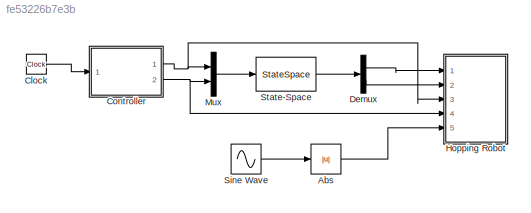
MODEL slx_fe53226b7e3b
KIND model
BLOCK [Abs] Abs
  SaturateOnIntegerOverflow = off
BLOCK [Clock] Clock
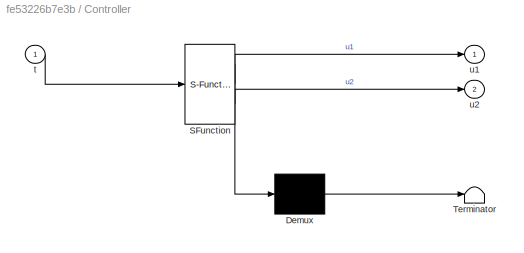
BLOCK [SubSystem] Controller
  ErrorFcn = Stateflow.Translate.translate
  FunctionWithSeparateData = off
  MaskHideContents = off
  MinAlgLoopOccurrences = off
  Opaque = off
  PermitHierarchicalResolution = ParametersOnly
  Ports = [1, 2]
  PropExecContextOutsideSubsystem = off
  RTWSystemCode = Auto
  RequestExecContextInheritance = off
  SFBlockType = MATLAB Function
  TreatAsAtomicUnit = on
  Variant = off
BLOCK [Demux] Controller/ Demux 
  Outputs = 1
  Ports = [1, 1]
BLOCK [S-Function] Controller/ SFunction 
  EnableBusSupport = on
  FunctionName = sf_sfun
  PortCounts = [1 3]
  Ports = [1, 3]
  SFunctionDeploymentMode = off
  Tag = Stateflow S-Function hopping_robot_plane_R2012b 2
BLOCK [Terminator] Controller/ Terminator 
BLOCK [Inport] Controller/t
  IconDisplay = Port number
BLOCK [Outport] Controller/u1
  IconDisplay = Port number
BLOCK [Outport] Controller/u2
  IconDisplay = Port number
  Port = 2
BLOCK [Demux] Demux
  DisplayOption = bar
  Outputs = 2
  Ports = [1, 2]
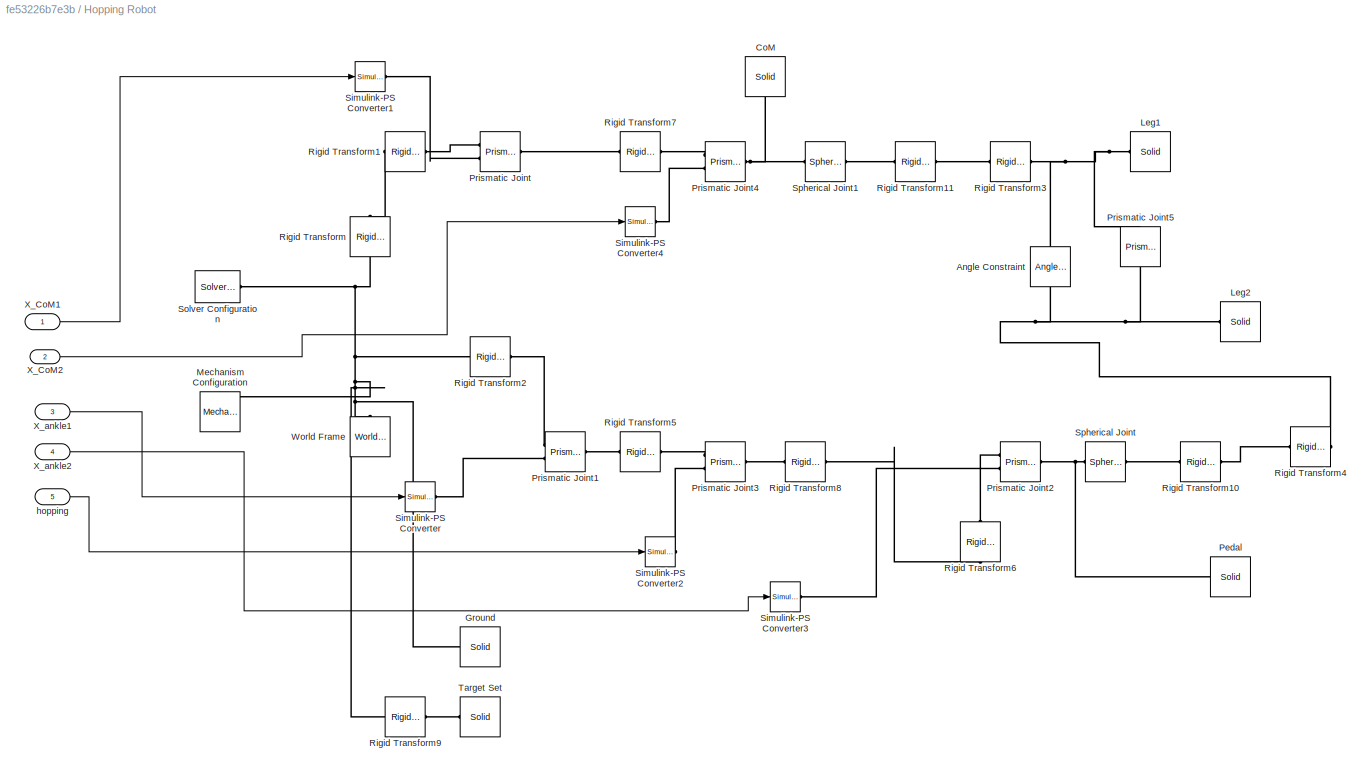
BLOCK [SubSystem] Hopping Robot
  FunctionWithSeparateData = off
  MaskHideContents = off
  MinAlgLoopOccurrences = off
  Opaque = off
  Ports = [5]
  PropExecContextOutsideSubsystem = off
  RTWSystemCode = Auto
  RequestExecContextInheritance = off
  Variant = off
BLOCK [Reference] Hopping Robot/Angle Constraint  REF=sm_lib/Constraints/Angle 
Constraint
  Angle = 45
  AngleUnits = deg
  Angle_conf = compiletime
  ConstraintType = Parallel
  LogSimulationData = off
  Ports = [0, 0, 0, 0, 0, 1, 1]
  SenseForce = off
  SenseSignedTorqueMagnitude = off
  SenseTorque = off
  SourceBlock = sm_lib/Constraints/Angle \nConstraint
  SourceType = Angle\nConstraint
  WrenchDir = FollowerOnBase
  WrenchFrame = BaseFrame
BLOCK [Reference] Hopping Robot/CoM  REF=sm_lib/Body Elements/Solid
  BrickDimensionUnits = m
  BrickDimensions = [1 1 1]
  BrickDimensions_conf = compiletime
  CenterOfMass = [0 0 0]
  CenterOfMassUnits = m
  CenterOfMass_conf = compiletime
  CylinderLength = 0.1
  CylinderLengthUnits = m
  CylinderLength_conf = compiletime
  CylinderRadius = 0.1
  CylinderRadiusUnits = m
  CylinderRadius_conf = compiletime
  Density = 1000
  DensityBased = on
  DensityUnits = kg/m^3
  Density_conf = compiletime
  DoExposeReferenceFrame = on
  EllipsoidRadii = [1 1 1]
  EllipsoidRadiiUnits = m
  EllipsoidRadii_conf = compiletime
  ExtGeomFileType = STEP
  ExtGeomFileUnits = m
  ExtrusionCrossSection = [1 1; -1 1; -1 -1; 1 -1]
  ExtrusionCrossSectionUnits = m
  ExtrusionLength = 1
  ExtrusionLengthUnits = m
  GeometryShape = Sphere
  GraphicAmbientColor = [0.15 0.15 0.15 1.0]
  GraphicAmbientColor_conf = compiletime
  GraphicDiffuseColor = [0.0 0.4 0.8]
  GraphicDiffuseColor_conf = compiletime
  GraphicEmissiveColor = [0.0 0.0 0.0 1.0]
  GraphicEmissiveColor_conf = compiletime
  GraphicOpacity = 1.0
  GraphicOpacity_conf = compiletime
  GraphicShininess = 75
  GraphicShininess_conf = compiletime
  GraphicSpecularColor = [0.5 0.5 0.5 1.0]
  GraphicSpecularColor_conf = compiletime
  GraphicType = FromGeometry
  GraphicVisPropType = SimpleVisualProperties
  InertiaType = CalculateFromGeometry
  LogSimulationData = off
  MarkerShape = Sphere
  MarkerSize = 10
  MarkerSize_conf = compiletime
  Mass = 1
  MassUnits = kg
  Mass_conf = compiletime
  MomentsOfInertia = [1 1 1]
  MomentsOfInertiaUnits = kg*m^2
  MomentsOfInertia_conf = compiletime
  PolygonNumSides = 3
  PolygonOuterRadius = 1
  PolygonOuterRadiusUnits = m
  PolygonOuterRadius_conf = compiletime
  Ports = [0, 0, 0, 0, 0, 0, 1]
  ProductsOfInertia = [1 1 1]
  ProductsOfInertiaUnits = kg*m^2
  ProductsOfInertia_conf = compiletime
  RectangleSize = [1 1]
  RectangleSizeUnits = m
  RectangleSize_conf = compiletime
  RevolutionAngle = 180
  RevolutionAngleUnits = deg
  RevolutionCrossSection = [1 1; 1 -1; 2 -1; 2 1]
  RevolutionCrossSectionUnits = m
  RevolutionExtent = Full
  SerializedFrames = <Frames/>
  SourceBlock = sm_lib/Body Elements/Solid
  SourceType = Solid
  SphereRadius = 0.1
  SphereRadiusUnits = m
  SphereRadius_conf = compiletime
BLOCK [Reference] Hopping Robot/Ground  REF=sm_lib/Body Elements/Solid
  BrickDimensionUnits = m
  BrickDimensions = [range(U.bnd(1,:)) range(U.bnd(2,:)) 0.001]
  BrickDimensions_conf = compiletime
  CenterOfMass = [0 0 0]
  CenterOfMassUnits = m
  CenterOfMass_conf = compiletime
  CylinderLength = 0.1
  CylinderLengthUnits = m
  CylinderLength_conf = compiletime
  CylinderRadius = 0.1
  CylinderRadiusUnits = m
  CylinderRadius_conf = compiletime
  Density = 1000
  DensityBased = on
  DensityUnits = kg/m^3
  Density_conf = compiletime
  DoExposeReferenceFrame = on
  EllipsoidRadii = [1 1 1]
  EllipsoidRadiiUnits = m
  EllipsoidRadii_conf = compiletime
  ExtGeomFileType = STEP
  ExtGeomFileUnits = m
  ExtrusionCrossSection = [1 1; -1 1; -1 -1; 1 -1]
  ExtrusionCrossSectionUnits = m
  ExtrusionLength = 1
  ExtrusionLengthUnits = m
  GeometryShape = Brick
  GraphicAmbientColor = [0.15 0.15 0.15 1.0]
  GraphicAmbientColor_conf = compiletime
  GraphicDiffuseColor = [0.0 0.0 1.0]
  GraphicDiffuseColor_conf = compiletime
  GraphicEmissiveColor = [0.0 0.0 0.0 1.0]
  GraphicEmissiveColor_conf = compiletime
  GraphicOpacity = 0.1
  GraphicOpacity_conf = compiletime
  GraphicShininess = 75
  GraphicShininess_conf = compiletime
  GraphicSpecularColor = [0.5 0.5 0.5 1.0]
  GraphicSpecularColor_conf = compiletime
  GraphicType = FromGeometry
  GraphicVisPropType = SimpleVisualProperties
  InertiaType = CalculateFromGeometry
  LogSimulationData = off
  MarkerShape = Sphere
  MarkerSize = 10
  MarkerSize_conf = compiletime
  Mass = 1
  MassUnits = kg
  Mass_conf = compiletime
  MomentsOfInertia = [1 1 1]
  MomentsOfInertiaUnits = kg*m^2
  MomentsOfInertia_conf = compiletime
  PolygonNumSides = 3
  PolygonOuterRadius = 1
  PolygonOuterRadiusUnits = m
  PolygonOuterRadius_conf = compiletime
  Ports = [0, 0, 0, 0, 0, 0, 1]
  ProductsOfInertia = [1 1 1]
  ProductsOfInertiaUnits = kg*m^2
  ProductsOfInertia_conf = compiletime
  RectangleSize = [1 1]
  RectangleSizeUnits = m
  RectangleSize_conf = compiletime
  RevolutionAngle = 180
  RevolutionAngleUnits = deg
  RevolutionCrossSection = [1 1; 1 -1; 2 -1; 2 1]
  RevolutionCrossSectionUnits = m
  RevolutionExtent = Full
  SerializedFrames = <Frames/>
  SourceBlock = sm_lib/Body Elements/Solid
  SourceType = Solid
  SphereRadius = 0.1
  SphereRadiusUnits = m
  SphereRadius_conf = compiletime
BLOCK [Reference] Hopping Robot/Leg1  REF=sm_lib/Body Elements/Solid
  BrickDimensionUnits = m
  BrickDimensions = [0.05 0.2 0.2]
  BrickDimensions_conf = compiletime
  CenterOfMass = [0 0 0]
  CenterOfMassUnits = m
  CenterOfMass_conf = compiletime
  CylinderLength = len_leg1
  CylinderLengthUnits = m
  CylinderLength_conf = compiletime
  CylinderRadius = 0.05
  CylinderRadiusUnits = m
  CylinderRadius_conf = compiletime
  Density = 1000
  DensityBased = on
  DensityUnits = kg/m^3
  Density_conf = compiletime
  DoExposeReferenceFrame = on
  EllipsoidRadii = [1 1 1]
  EllipsoidRadiiUnits = m
  EllipsoidRadii_conf = compiletime
  ExtGeomFileType = STEP
  ExtGeomFileUnits = m
  ExtrusionCrossSection = [1 1; -1 1; -1 -1; 1 -1]
  ExtrusionCrossSectionUnits = m
  ExtrusionLength = 1
  ExtrusionLengthUnits = m
  GeometryShape = Cylinder
  GraphicAmbientColor = [0.15 0.15 0.15 1.0]
  GraphicAmbientColor_conf = compiletime
  GraphicDiffuseColor = [0.2 0.6 1.0]
  GraphicDiffuseColor_conf = compiletime
  GraphicEmissiveColor = [0.0 0.0 0.0 1.0]
  GraphicEmissiveColor_conf = compiletime
  GraphicOpacity = 1.0
  GraphicOpacity_conf = compiletime
  GraphicShininess = 75
  GraphicShininess_conf = compiletime
  GraphicSpecularColor = [0.5 0.5 0.5 1.0]
  GraphicSpecularColor_conf = compiletime
  GraphicType = FromGeometry
  GraphicVisPropType = SimpleVisualProperties
  InertiaType = CalculateFromGeometry
  LogSimulationData = off
  MarkerShape = Sphere
  MarkerSize = 10
  MarkerSize_conf = compiletime
  Mass = 1
  MassUnits = kg
  Mass_conf = compiletime
  MomentsOfInertia = [1 1 1]
  MomentsOfInertiaUnits = kg*m^2
  MomentsOfInertia_conf = compiletime
  PolygonNumSides = 3
  PolygonOuterRadius = 1
  PolygonOuterRadiusUnits = m
  PolygonOuterRadius_conf = compiletime
  Ports = [0, 0, 0, 0, 0, 0, 1]
  ProductsOfInertia = [1 1 1]
  ProductsOfInertiaUnits = kg*m^2
  ProductsOfInertia_conf = compiletime
  RectangleSize = [1 1]
  RectangleSizeUnits = m
  RectangleSize_conf = compiletime
  RevolutionAngle = 180
  RevolutionAngleUnits = deg
  RevolutionCrossSection = [1 1; 1 -1; 2 -1; 2 1]
  RevolutionCrossSectionUnits = m
  RevolutionExtent = Full
  SerializedFrames = <Frames/>
  SourceBlock = sm_lib/Body Elements/Solid
  SourceType = Solid
  SphereRadius = 1
  SphereRadiusUnits = m
  SphereRadius_conf = compiletime
BLOCK [Reference] Hopping Robot/Leg2  REF=sm_lib/Body Elements/Solid
  BrickDimensionUnits = m
  BrickDimensions = [0.05 0.2 0.2]
  BrickDimensions_conf = compiletime
  CenterOfMass = [0 0 0]
  CenterOfMassUnits = m
  CenterOfMass_conf = compiletime
  CylinderLength = len_leg2
  CylinderLengthUnits = m
  CylinderLength_conf = compiletime
  CylinderRadius = 0.02
  CylinderRadiusUnits = m
  CylinderRadius_conf = compiletime
  Density = 1000
  DensityBased = on
  DensityUnits = kg/m^3
  Density_conf = compiletime
  DoExposeReferenceFrame = on
  EllipsoidRadii = [1 1 1]
  EllipsoidRadiiUnits = m
  EllipsoidRadii_conf = compiletime
  ExtGeomFileType = STEP
  ExtGeomFileUnits = m
  ExtrusionCrossSection = [1 1; -1 1; -1 -1; 1 -1]
  ExtrusionCrossSectionUnits = m
  ExtrusionLength = 1
  ExtrusionLengthUnits = m
  GeometryShape = Cylinder
  GraphicAmbientColor = [0.15 0.15 0.15 1.0]
  GraphicAmbientColor_conf = compiletime
  GraphicDiffuseColor = [0.6 0.8 1.0]
  GraphicDiffuseColor_conf = compiletime
  GraphicEmissiveColor = [0.0 0.0 0.0 1.0]
  GraphicEmissiveColor_conf = compiletime
  GraphicOpacity = 1.0
  GraphicOpacity_conf = compiletime
  GraphicShininess = 75
  GraphicShininess_conf = compiletime
  GraphicSpecularColor = [0.5 0.5 0.5 1.0]
  GraphicSpecularColor_conf = compiletime
  GraphicType = FromGeometry
  GraphicVisPropType = SimpleVisualProperties
  InertiaType = CalculateFromGeometry
  LogSimulationData = off
  MarkerShape = Sphere
  MarkerSize = 10
  MarkerSize_conf = compiletime
  Mass = 1
  MassUnits = kg
  Mass_conf = compiletime
  MomentsOfInertia = [1 1 1]
  MomentsOfInertiaUnits = kg*m^2
  MomentsOfInertia_conf = compiletime
  PolygonNumSides = 3
  PolygonOuterRadius = 1
  PolygonOuterRadiusUnits = m
  PolygonOuterRadius_conf = compiletime
  Ports = [0, 0, 0, 0, 0, 0, 1]
  ProductsOfInertia = [1 1 1]
  ProductsOfInertiaUnits = kg*m^2
  ProductsOfInertia_conf = compiletime
  RectangleSize = [1 1]
  RectangleSizeUnits = m
  RectangleSize_conf = compiletime
  RevolutionAngle = 180
  RevolutionAngleUnits = deg
  RevolutionCrossSection = [1 1; 1 -1; 2 -1; 2 1]
  RevolutionCrossSectionUnits = m
  RevolutionExtent = Full
  SerializedFrames = <Frames/>
  SourceBlock = sm_lib/Body Elements/Solid
  SourceType = Solid
  SphereRadius = 1
  SphereRadiusUnits = m
  SphereRadius_conf = compiletime
BLOCK [Reference] Hopping Robot/Mechanism Configuration  REF=sm_lib/Utilities/Mechanism 
Configuration
  GravityUnits = m/s^2
  GravityVector = [0 0 -9.80665]
  GravityVector_conf = compiletime
  LinearizationDelta = 0.001
  LogSimulationData = off
  Ports = [0, 0, 0, 0, 0, 0, 1]
  SourceBlock = sm_lib/Utilities/Mechanism \nConfiguration
  SourceType = Mechanism\nConfiguration
BLOCK [Reference] Hopping Robot/Pedal  REF=sm_lib/Body Elements/Solid
  BrickDimensionUnits = m
  BrickDimensions = [0.05 0.2 0.2]
  BrickDimensions_conf = compiletime
  CenterOfMass = [0 0 0]
  CenterOfMassUnits = m
  CenterOfMass_conf = compiletime
  CylinderLength = 1
  CylinderLengthUnits = m
  CylinderLength_conf = compiletime
  CylinderRadius = 1
  CylinderRadiusUnits = m
  CylinderRadius_conf = compiletime
  Density = 1000
  DensityBased = on
  DensityUnits = kg/m^3
  Density_conf = compiletime
  DoExposeReferenceFrame = on
  EllipsoidRadii = [1 1 1]
  EllipsoidRadiiUnits = m
  EllipsoidRadii_conf = compiletime
  ExtGeomFileType = STEP
  ExtGeomFileUnits = m
  ExtrusionCrossSection = [1 1; -1 1; -1 -1; 1 -1]
  ExtrusionCrossSectionUnits = m
  ExtrusionLength = 1
  ExtrusionLengthUnits = m
  GeometryShape = Brick
  GraphicAmbientColor = [0.15 0.15 0.15 1.0]
  GraphicAmbientColor_conf = compiletime
  GraphicDiffuseColor = [0.8 0.0 0.6]
  GraphicDiffuseColor_conf = compiletime
  GraphicEmissiveColor = [0.0 0.0 0.0 1.0]
  GraphicEmissiveColor_conf = compiletime
  GraphicOpacity = 1.0
  GraphicOpacity_conf = compiletime
  GraphicShininess = 75
  GraphicShininess_conf = compiletime
  GraphicSpecularColor = [0.5 0.5 0.5 1.0]
  GraphicSpecularColor_conf = compiletime
  GraphicType = FromGeometry
  GraphicVisPropType = SimpleVisualProperties
  InertiaType = CalculateFromGeometry
  LogSimulationData = off
  MarkerShape = Sphere
  MarkerSize = 10
  MarkerSize_conf = compiletime
  Mass = 1
  MassUnits = kg
  Mass_conf = compiletime
  MomentsOfInertia = [1 1 1]
  MomentsOfInertiaUnits = kg*m^2
  MomentsOfInertia_conf = compiletime
  PolygonNumSides = 3
  PolygonOuterRadius = 1
  PolygonOuterRadiusUnits = m
  PolygonOuterRadius_conf = compiletime
  Ports = [0, 0, 0, 0, 0, 0, 1]
  ProductsOfInertia = [1 1 1]
  ProductsOfInertiaUnits = kg*m^2
  ProductsOfInertia_conf = compiletime
  RectangleSize = [1 1]
  RectangleSizeUnits = m
  RectangleSize_conf = compiletime
  RevolutionAngle = 180
  RevolutionAngleUnits = deg
  RevolutionCrossSection = [1 1; 1 -1; 2 -1; 2 1]
  RevolutionCrossSectionUnits = m
  RevolutionExtent = Full
  SerializedFrames = <Frames/>
  SourceBlock = sm_lib/Body Elements/Solid
  SourceType = Solid
  SphereRadius = 1
  SphereRadiusUnits = m
  SphereRadius_conf = compiletime
BLOCK [Reference] Hopping Robot/Prismatic Joint  REF=sm_lib/Joints/Prismatic 
Joint
  CompositeWrenchDir = FollowerOnBase
  CompositeWrenchFrame = BaseFrame
  DampingCoefficient = 0
  DampingCoefficientUnits = N/(m/s)
  DampingCoefficient_conf = compiletime
  EquilibriumPosition = 0
  EquilibriumPositionUnits = m
  EquilibriumPosition_conf = compiletime
  LogSimulationData = off
  MotionActuationMode = InputMotion
  Ports = [0, 0, 0, 0, 0, 2, 1]
  PositionTargetPriority = Low
  PositionTargetSpecify = off
  PositionTargetValue = 0
  PositionTargetValueUnits = m
  PositionTargetValue_conf = compiletime
  SenseAcceleration = off
  SenseConstraintForce = off
  SenseConstraintForceX = off
  SenseConstraintForceY = off
  SenseConstraintForceZ = off
  SenseConstraintTorque = off
  SenseConstraintTorqueX = off
  SenseConstraintTorqueY = off
  SenseConstraintTorqueZ = off
  SensePosition = off
  SenseTorqueForce = off
  SenseTotalForce = off
  SenseTotalForceX = off
  SenseTotalForceY = off
  SenseTotalForceZ = off
  SenseTotalTorque = off
  SenseTotalTorqueX = off
  SenseTotalTorqueY = off
  SenseTotalTorqueZ = off
  SenseVelocity = off
  SourceBlock = sm_lib/Joints/Prismatic \nJoint
  SourceType = Prismatic\nJoint
  SpringStiffness = 0
  SpringStiffnessUnits = N/m
  SpringStiffness_conf = compiletime
  TorqueActuationMode = ComputedTorque
  VelocityTargetPriority = High
  VelocityTargetSpecify = off
  VelocityTargetValue = 0
  VelocityTargetValueUnits = m/s
  VelocityTargetValue_conf = compiletime
BLOCK [Reference] Hopping Robot/Prismatic Joint1  REF=sm_lib/Joints/Prismatic 
Joint
  CompositeWrenchDir = FollowerOnBase
  CompositeWrenchFrame = BaseFrame
  DampingCoefficient = 0
  DampingCoefficientUnits = N/(m/s)
  DampingCoefficient_conf = compiletime
  EquilibriumPosition = 0
  EquilibriumPositionUnits = m
  EquilibriumPosition_conf = compiletime
  LogSimulationData = off
  MotionActuationMode = InputMotion
  Ports = [0, 0, 0, 0, 0, 2, 1]
  PositionTargetPriority = Low
  PositionTargetSpecify = off
  PositionTargetValue = 0
  PositionTargetValueUnits = m
  PositionTargetValue_conf = compiletime
  SenseAcceleration = off
  SenseConstraintForce = off
  SenseConstraintForceX = off
  SenseConstraintForceY = off
  SenseConstraintForceZ = off
  SenseConstraintTorque = off
  SenseConstraintTorqueX = off
  SenseConstraintTorqueY = off
  SenseConstraintTorqueZ = off
  SensePosition = off
  SenseTorqueForce = off
  SenseTotalForce = off
  SenseTotalForceX = off
  SenseTotalForceY = off
  SenseTotalForceZ = off
  SenseTotalTorque = off
  SenseTotalTorqueX = off
  SenseTotalTorqueY = off
  SenseTotalTorqueZ = off
  SenseVelocity = off
  SourceBlock = sm_lib/Joints/Prismatic \nJoint
  SourceType = Prismatic\nJoint
  SpringStiffness = 0
  SpringStiffnessUnits = N/m
  SpringStiffness_conf = compiletime
  TorqueActuationMode = ComputedTorque
  VelocityTargetPriority = High
  VelocityTargetSpecify = off
  VelocityTargetValue = 0
  VelocityTargetValueUnits = m/s
  VelocityTargetValue_conf = compiletime
BLOCK [Reference] Hopping Robot/Prismatic Joint2  REF=sm_lib/Joints/Prismatic 
Joint
  CompositeWrenchDir = FollowerOnBase
  CompositeWrenchFrame = BaseFrame
  DampingCoefficient = 0
  DampingCoefficientUnits = N/(m/s)
  DampingCoefficient_conf = compiletime
  EquilibriumPosition = 0
  EquilibriumPositionUnits = m
  EquilibriumPosition_conf = compiletime
  LogSimulationData = off
  MotionActuationMode = InputMotion
  Ports = [0, 0, 0, 0, 0, 2, 1]
  PositionTargetPriority = High
  PositionTargetSpecify = off
  PositionTargetValue = 0
  PositionTargetValueUnits = m
  PositionTargetValue_conf = compiletime
  SenseAcceleration = off
  SenseConstraintForce = off
  SenseConstraintForceX = off
  SenseConstraintForceY = off
  SenseConstraintForceZ = off
  SenseConstraintTorque = off
  SenseConstraintTorqueX = off
  SenseConstraintTorqueY = off
  SenseConstraintTorqueZ = off
  SensePosition = off
  SenseTorqueForce = off
  SenseTotalForce = off
  SenseTotalForceX = off
  SenseTotalForceY = off
  SenseTotalForceZ = off
  SenseTotalTorque = off
  SenseTotalTorqueX = off
  SenseTotalTorqueY = off
  SenseTotalTorqueZ = off
  SenseVelocity = off
  SourceBlock = sm_lib/Joints/Prismatic \nJoint
  SourceType = Prismatic\nJoint
  SpringStiffness = 0
  SpringStiffnessUnits = N/m
  SpringStiffness_conf = compiletime
  TorqueActuationMode = ComputedTorque
  VelocityTargetPriority = High
  VelocityTargetSpecify = off
  VelocityTargetValue = 0
  VelocityTargetValueUnits = m/s
  VelocityTargetValue_conf = compiletime
BLOCK [Reference] Hopping Robot/Prismatic Joint3  REF=sm_lib/Joints/Prismatic 
Joint
  CompositeWrenchDir = FollowerOnBase
  CompositeWrenchFrame = BaseFrame
  DampingCoefficient = 0
  DampingCoefficientUnits = N/(m/s)
  DampingCoefficient_conf = compiletime
  EquilibriumPosition = 0
  EquilibriumPositionUnits = m
  EquilibriumPosition_conf = compiletime
  LogSimulationData = off
  MotionActuationMode = InputMotion
  Ports = [0, 0, 0, 0, 0, 2, 1]
  PositionTargetPriority = Low
  PositionTargetSpecify = off
  PositionTargetValue = 0
  PositionTargetValueUnits = m
  PositionTargetValue_conf = compiletime
  SenseAcceleration = off
  SenseConstraintForce = off
  SenseConstraintForceX = off
  SenseConstraintForceY = off
  SenseConstraintForceZ = off
  SenseConstraintTorque = off
  SenseConstraintTorqueX = off
  SenseConstraintTorqueY = off
  SenseConstraintTorqueZ = off
  SensePosition = off
  SenseTorqueForce = off
  SenseTotalForce = off
  SenseTotalForceX = off
  SenseTotalForceY = off
  SenseTotalForceZ = off
  SenseTotalTorque = off
  SenseTotalTorqueX = off
  SenseTotalTorqueY = off
  SenseTotalTorqueZ = off
  SenseVelocity = off
  SourceBlock = sm_lib/Joints/Prismatic \nJoint
  SourceType = Prismatic\nJoint
  SpringStiffness = 0
  SpringStiffnessUnits = N/m
  SpringStiffness_conf = compiletime
  TorqueActuationMode = ComputedTorque
  VelocityTargetPriority = High
  VelocityTargetSpecify = off
  VelocityTargetValue = 0
  VelocityTargetValueUnits = m/s
  VelocityTargetValue_conf = compiletime
BLOCK [Reference] Hopping Robot/Prismatic Joint4  REF=sm_lib/Joints/Prismatic 
Joint
  CompositeWrenchDir = FollowerOnBase
  CompositeWrenchFrame = BaseFrame
  DampingCoefficient = 0
  DampingCoefficientUnits = N/(m/s)
  DampingCoefficient_conf = compiletime
  EquilibriumPosition = 0
  EquilibriumPositionUnits = m
  EquilibriumPosition_conf = compiletime
  LogSimulationData = off
  MotionActuationMode = InputMotion
  Ports = [0, 0, 0, 0, 0, 2, 1]
  PositionTargetPriority = High
  PositionTargetSpecify = off
  PositionTargetValue = 0
  PositionTargetValueUnits = m
  PositionTargetValue_conf = compiletime
  SenseAcceleration = off
  SenseConstraintForce = off
  SenseConstraintForceX = off
  SenseConstraintForceY = off
  SenseConstraintForceZ = off
  SenseConstraintTorque = off
  SenseConstraintTorqueX = off
  SenseConstraintTorqueY = off
  SenseConstraintTorqueZ = off
  SensePosition = off
  SenseTorqueForce = off
  SenseTotalForce = off
  SenseTotalForceX = off
  SenseTotalForceY = off
  SenseTotalForceZ = off
  SenseTotalTorque = off
  SenseTotalTorqueX = off
  SenseTotalTorqueY = off
  SenseTotalTorqueZ = off
  SenseVelocity = off
  SourceBlock = sm_lib/Joints/Prismatic \nJoint
  SourceType = Prismatic\nJoint
  SpringStiffness = 0
  SpringStiffnessUnits = N/m
  SpringStiffness_conf = compiletime
  TorqueActuationMode = ComputedTorque
  VelocityTargetPriority = High
  VelocityTargetSpecify = off
  VelocityTargetValue = 0
  VelocityTargetValueUnits = m/s
  VelocityTargetValue_conf = compiletime
BLOCK [Reference] Hopping Robot/Prismatic Joint5  REF=sm_lib/Joints/Prismatic 
Joint
  CompositeWrenchDir = FollowerOnBase
  CompositeWrenchFrame = BaseFrame
  DampingCoefficient = 0
  DampingCoefficientUnits = N/(m/s)
  DampingCoefficient_conf = compiletime
  EquilibriumPosition = 0
  EquilibriumPositionUnits = m
  EquilibriumPosition_conf = compiletime
  LogSimulationData = off
  MotionActuationMode = ComputedMotion
  Ports = [0, 0, 0, 0, 0, 1, 1]
  PositionTargetPriority = High
  PositionTargetSpecify = off
  PositionTargetValue = 0
  PositionTargetValueUnits = m
  PositionTargetValue_conf = compiletime
  SenseAcceleration = off
  SenseConstraintForce = off
  SenseConstraintForceX = off
  SenseConstraintForceY = off
  SenseConstraintForceZ = off
  SenseConstraintTorque = off
  SenseConstraintTorqueX = off
  SenseConstraintTorqueY = off
  SenseConstraintTorqueZ = off
  SensePosition = off
  SenseTorqueForce = off
  SenseTotalForce = off
  SenseTotalForceX = off
  SenseTotalForceY = off
  SenseTotalForceZ = off
  SenseTotalTorque = off
  SenseTotalTorqueX = off
  SenseTotalTorqueY = off
  SenseTotalTorqueZ = off
  SenseVelocity = off
  SourceBlock = sm_lib/Joints/Prismatic \nJoint
  SourceType = Prismatic\nJoint
  SpringStiffness = 0
  SpringStiffnessUnits = N/m
  SpringStiffness_conf = compiletime
  TorqueActuationMode = NoTorque
  VelocityTargetPriority = High
  VelocityTargetSpecify = off
  VelocityTargetValue = 0
  VelocityTargetValueUnits = m/s
  VelocityTargetValue_conf = compiletime
BLOCK [Reference] Hopping Robot/Rigid Transform  REF=sm_lib/Frames and
 Transforms/Rigid 
Transform
  BaseAlignAxisA = +Y
  BaseAlignAxisB = +Z
  FollAlignAxisA = +X
  FollAlignAxisB = +Y
  LogSimulationData = off
  Ports = [0, 0, 0, 0, 0, 1, 1]
  RotationAngle = 0.0
  RotationAngleUnits = deg
  RotationAngle_conf = compiletime
  RotationArbitraryAxis = [0 0 1]
  RotationArbitraryAxis_conf = compiletime
  RotationMatrix = [1 0 0; 0 1 0; 0 0 1]
  RotationMatrix_conf = compiletime
  RotationMethod = None
  RotationSequence = XYX
  RotationSequenceAngles = [0 0 0]
  RotationSequenceAnglesUnits = deg
  RotationSequenceAngles_conf = compiletime
  RotationSequenceAxes = FollowerAxes
  RotationStandardAxis = +Z
  SourceBlock = sm_lib/Frames and\n Transforms/Rigid \nTransform
  SourceType = Rigid\nTransform
  TranslationCartesianOffset = [0 0 0]
  TranslationCartesianOffset_conf = compiletime
  TranslationLengthUnit = m
  TranslationMethod = StandardAxis
  TranslationROffset = 0
  TranslationROffsetUnits = m
  TranslationROffset_conf = compiletime
  TranslationStandardAxis = +Z
  TranslationStandardOffset = h0
  TranslationStandardOffset_conf = compiletime
  TranslationThetaOffset = 0
  TranslationThetaOffsetUnits = deg
  TranslationThetaOffset_conf = compiletime
  TranslationZOffset = 0
  TranslationZOffsetUnits = m
  TranslationZOffset_conf = compiletime
BLOCK [Reference] Hopping Robot/Rigid Transform1  REF=sm_lib/Frames and
 Transforms/Rigid 
Transform
  BaseAlignAxisA = +Y
  BaseAlignAxisB = +Z
  FollAlignAxisA = +X
  FollAlignAxisB = +Y
  LogSimulationData = off
  Ports = [0, 0, 0, 0, 0, 1, 1]
  RotationAngle = 90
  RotationAngleUnits = deg
  RotationAngle_conf = compiletime
  RotationArbitraryAxis = [0 0 1]
  RotationArbitraryAxis_conf = compiletime
  RotationMatrix = [1 0 0; 0 1 0; 0 0 1]
  RotationMatrix_conf = compiletime
  RotationMethod = StandardAxis
  RotationSequence = XYX
  RotationSequenceAngles = [0 0 0]
  RotationSequenceAnglesUnits = deg
  RotationSequenceAngles_conf = compiletime
  RotationSequenceAxes = FollowerAxes
  RotationStandardAxis = +Y
  SourceBlock = sm_lib/Frames and\n Transforms/Rigid \nTransform
  SourceType = Rigid\nTransform
  TranslationCartesianOffset = [0 0 0]
  TranslationCartesianOffset_conf = compiletime
  TranslationLengthUnit = m
  TranslationMethod = None
  TranslationROffset = 0
  TranslationROffsetUnits = m
  TranslationROffset_conf = compiletime
  TranslationStandardAxis = +Z
  TranslationStandardOffset = h0
  TranslationStandardOffset_conf = compiletime
  TranslationThetaOffset = 0
  TranslationThetaOffsetUnits = deg
  TranslationThetaOffset_conf = compiletime
  TranslationZOffset = 0
  TranslationZOffsetUnits = m
  TranslationZOffset_conf = compiletime
BLOCK [Reference] Hopping Robot/Rigid Transform10  REF=sm_lib/Frames and
 Transforms/Rigid 
Transform
  BaseAlignAxisA = +Y
  BaseAlignAxisB = +Z
  FollAlignAxisA = +X
  FollAlignAxisB = +Y
  LogSimulationData = off
  Ports = [0, 0, 0, 0, 0, 1, 1]
  RotationAngle = 90
  RotationAngleUnits = deg
  RotationAngle_conf = compiletime
  RotationArbitraryAxis = [0 0 1]
  RotationArbitraryAxis_conf = compiletime
  RotationMatrix = [1 0 0; 0 1 0; 0 0 1]
  RotationMatrix_conf = compiletime
  RotationMethod = StandardAxis
  RotationSequence = XYX
  RotationSequenceAngles = [0 0 0]
  RotationSequenceAnglesUnits = deg
  RotationSequenceAngles_conf = compiletime
  RotationSequenceAxes = FollowerAxes
  RotationStandardAxis = +Z
  SourceBlock = sm_lib/Frames and\n Transforms/Rigid \nTransform
  SourceType = Rigid\nTransform
  TranslationCartesianOffset = [0 0 0]
  TranslationCartesianOffset_conf = compiletime
  TranslationLengthUnit = m
  TranslationMethod = None
  TranslationROffset = 0
  TranslationROffsetUnits = m
  TranslationROffset_conf = compiletime
  TranslationStandardAxis = -Y
  TranslationStandardOffset = len_leg2/2
  TranslationStandardOffset_conf = compiletime
  TranslationThetaOffset = 0
  TranslationThetaOffsetUnits = deg
  TranslationThetaOffset_conf = compiletime
  TranslationZOffset = 0
  TranslationZOffsetUnits = m
  TranslationZOffset_conf = compiletime
BLOCK [Reference] Hopping Robot/Rigid Transform11  REF=sm_lib/Frames and
 Transforms/Rigid 
Transform
  BaseAlignAxisA = +Y
  BaseAlignAxisB = +Z
  FollAlignAxisA = +X
  FollAlignAxisB = +Y
  LogSimulationData = off
  Ports = [0, 0, 0, 0, 0, 1, 1]
  RotationAngle = 90
  RotationAngleUnits = deg
  RotationAngle_conf = compiletime
  RotationArbitraryAxis = [0 0 1]
  RotationArbitraryAxis_conf = compiletime
  RotationMatrix = [1 0 0; 0 1 0; 0 0 1]
  RotationMatrix_conf = compiletime
  RotationMethod = StandardAxis
  RotationSequence = XYX
  RotationSequenceAngles = [0 0 0]
  RotationSequenceAnglesUnits = deg
  RotationSequenceAngles_conf = compiletime
  RotationSequenceAxes = FollowerAxes
  RotationStandardAxis = +Z
  SourceBlock = sm_lib/Frames and\n Transforms/Rigid \nTransform
  SourceType = Rigid\nTransform
  TranslationCartesianOffset = [0 0 0]
  TranslationCartesianOffset_conf = compiletime
  TranslationLengthUnit = m
  TranslationMethod = None
  TranslationROffset = 0
  TranslationROffsetUnits = m
  TranslationROffset_conf = compiletime
  TranslationStandardAxis = +Y
  TranslationStandardOffset = h0/20
  TranslationStandardOffset_conf = compiletime
  TranslationThetaOffset = 0
  TranslationThetaOffsetUnits = deg
  TranslationThetaOffset_conf = compiletime
  TranslationZOffset = 0
  TranslationZOffsetUnits = m
  TranslationZOffset_conf = compiletime
BLOCK [Reference] Hopping Robot/Rigid Transform2  REF=sm_lib/Frames and
 Transforms/Rigid 
Transform
  BaseAlignAxisA = +Y
  BaseAlignAxisB = +Z
  FollAlignAxisA = +X
  FollAlignAxisB = +Y
  LogSimulationData = off
  Ports = [0, 0, 0, 0, 0, 1, 1]
  RotationAngle = 90
  RotationAngleUnits = deg
  RotationAngle_conf = compiletime
  RotationArbitraryAxis = [0 0 1]
  RotationArbitraryAxis_conf = compiletime
  RotationMatrix = [1 0 0; 0 1 0; 0 0 1]
  RotationMatrix_conf = compiletime
  RotationMethod = StandardAxis
  RotationSequence = XYX
  RotationSequenceAngles = [0 0 0]
  RotationSequenceAnglesUnits = deg
  RotationSequenceAngles_conf = compiletime
  RotationSequenceAxes = FollowerAxes
  RotationStandardAxis = +Y
  SourceBlock = sm_lib/Frames and\n Transforms/Rigid \nTransform
  SourceType = Rigid\nTransform
  TranslationCartesianOffset = [0 0 0]
  TranslationCartesianOffset_conf = compiletime
  TranslationLengthUnit = m
  TranslationMethod = None
  TranslationROffset = 0
  TranslationROffsetUnits = m
  TranslationROffset_conf = compiletime
  TranslationStandardAxis = +Z
  TranslationStandardOffset = h0
  TranslationStandardOffset_conf = compiletime
  TranslationThetaOffset = 0
  TranslationThetaOffsetUnits = deg
  TranslationThetaOffset_conf = compiletime
  TranslationZOffset = 0
  TranslationZOffsetUnits = m
  TranslationZOffset_conf = compiletime
BLOCK [Reference] Hopping Robot/Rigid Transform3  REF=sm_lib/Frames and
 Transforms/Rigid 
Transform
  BaseAlignAxisA = +Y
  BaseAlignAxisB = +Z
  FollAlignAxisA = +X
  FollAlignAxisB = +Y
  LogSimulationData = off
  Ports = [0, 0, 0, 0, 0, 1, 1]
  RotationAngle = -90
  RotationAngleUnits = deg
  RotationAngle_conf = compiletime
  RotationArbitraryAxis = [0 0 1]
  RotationArbitraryAxis_conf = compiletime
  RotationMatrix = [1 0 0; 0 1 0; 0 0 1]
  RotationMatrix_conf = compiletime
  RotationMethod = StandardAxis
  RotationSequence = XYX
  RotationSequenceAngles = [0 0 0]
  RotationSequenceAnglesUnits = deg
  RotationSequenceAngles_conf = compiletime
  RotationSequenceAxes = FollowerAxes
  RotationStandardAxis = +X
  SourceBlock = sm_lib/Frames and\n Transforms/Rigid \nTransform
  SourceType = Rigid\nTransform
  TranslationCartesianOffset = [0 0 0]
  TranslationCartesianOffset_conf = compiletime
  TranslationLengthUnit = m
  TranslationMethod = None
  TranslationROffset = 0
  TranslationROffsetUnits = m
  TranslationROffset_conf = compiletime
  TranslationStandardAxis = +Y
  TranslationStandardOffset = h0/20
  TranslationStandardOffset_conf = compiletime
  TranslationThetaOffset = 0
  TranslationThetaOffsetUnits = deg
  TranslationThetaOffset_conf = compiletime
  TranslationZOffset = 0
  TranslationZOffsetUnits = m
  TranslationZOffset_conf = compiletime
BLOCK [Reference] Hopping Robot/Rigid Transform4  REF=sm_lib/Frames and
 Transforms/Rigid 
Transform
  BaseAlignAxisA = +Y
  BaseAlignAxisB = +Z
  FollAlignAxisA = +X
  FollAlignAxisB = +Y
  LogSimulationData = off
  Ports = [0, 0, 0, 0, 0, 1, 1]
  RotationAngle = 90
  RotationAngleUnits = deg
  RotationAngle_conf = compiletime
  RotationArbitraryAxis = [0 0 1]
  RotationArbitraryAxis_conf = compiletime
  RotationMatrix = [1 0 0; 0 1 0; 0 0 1]
  RotationMatrix_conf = compiletime
  RotationMethod = StandardAxis
  RotationSequence = XYX
  RotationSequenceAngles = [0 0 0]
  RotationSequenceAnglesUnits = deg
  RotationSequenceAngles_conf = compiletime
  RotationSequenceAxes = FollowerAxes
  RotationStandardAxis = +X
  SourceBlock = sm_lib/Frames and\n Transforms/Rigid \nTransform
  SourceType = Rigid\nTransform
  TranslationCartesianOffset = [0 0 0]
  TranslationCartesianOffset_conf = compiletime
  TranslationLengthUnit = m
  TranslationMethod = StandardAxis
  TranslationROffset = 0
  TranslationROffsetUnits = m
  TranslationROffset_conf = compiletime
  TranslationStandardAxis = -Y
  TranslationStandardOffset = len_leg2/2
  TranslationStandardOffset_conf = compiletime
  TranslationThetaOffset = 0
  TranslationThetaOffsetUnits = deg
  TranslationThetaOffset_conf = compiletime
  TranslationZOffset = 0
  TranslationZOffsetUnits = m
  TranslationZOffset_conf = compiletime
BLOCK [Reference] Hopping Robot/Rigid Transform5  REF=sm_lib/Frames and
 Transforms/Rigid 
Transform
  BaseAlignAxisA = +Y
  BaseAlignAxisB = +Z
  FollAlignAxisA = +X
  FollAlignAxisB = +Y
  LogSimulationData = off
  Ports = [0, 0, 0, 0, 0, 1, 1]
  RotationAngle = -90
  RotationAngleUnits = deg
  RotationAngle_conf = compiletime
  RotationArbitraryAxis = [0 0 1]
  RotationArbitraryAxis_conf = compiletime
  RotationMatrix = [1 0 0; 0 1 0; 0 0 1]
  RotationMatrix_conf = compiletime
  RotationMethod = StandardAxis
  RotationSequence = XYX
  RotationSequenceAngles = [0 0 0]
  RotationSequenceAnglesUnits = deg
  RotationSequenceAngles_conf = compiletime
  RotationSequenceAxes = FollowerAxes
  RotationStandardAxis = +Y
  SourceBlock = sm_lib/Frames and\n Transforms/Rigid \nTransform
  SourceType = Rigid\nTransform
  TranslationCartesianOffset = [0 0 0]
  TranslationCartesianOffset_conf = compiletime
  TranslationLengthUnit = m
  TranslationMethod = None
  TranslationROffset = 0
  TranslationROffsetUnits = m
  TranslationROffset_conf = compiletime
  TranslationStandardAxis = +Z
  TranslationStandardOffset = len_leg2/2
  TranslationStandardOffset_conf = compiletime
  TranslationThetaOffset = 0
  TranslationThetaOffsetUnits = deg
  TranslationThetaOffset_conf = compiletime
  TranslationZOffset = 0
  TranslationZOffsetUnits = m
  TranslationZOffset_conf = compiletime
BLOCK [Reference] Hopping Robot/Rigid Transform6  REF=sm_lib/Frames and
 Transforms/Rigid 
Transform
  BaseAlignAxisA = +Y
  BaseAlignAxisB = +Z
  FollAlignAxisA = +X
  FollAlignAxisB = +Y
  LogSimulationData = off
  Ports = [0, 0, 0, 0, 0, 1, 1]
  RotationAngle = 90
  RotationAngleUnits = deg
  RotationAngle_conf = compiletime
  RotationArbitraryAxis = [0 0 1]
  RotationArbitraryAxis_conf = compiletime
  RotationMatrix = [1 0 0; 0 1 0; 0 0 1]
  RotationMatrix_conf = compiletime
  RotationMethod = StandardAxis
  RotationSequence = XYX
  RotationSequenceAngles = [0 0 0]
  RotationSequenceAnglesUnits = deg
  RotationSequenceAngles_conf = compiletime
  RotationSequenceAxes = FollowerAxes
  RotationStandardAxis = -X
  SourceBlock = sm_lib/Frames and\n Transforms/Rigid \nTransform
  SourceType = Rigid\nTransform
  TranslationCartesianOffset = [0 0 0]
  TranslationCartesianOffset_conf = compiletime
  TranslationLengthUnit = m
  TranslationMethod = None
  TranslationROffset = 0
  TranslationROffsetUnits = m
  TranslationROffset_conf = compiletime
  TranslationStandardAxis = +Z
  TranslationStandardOffset = len_leg2/2
  TranslationStandardOffset_conf = compiletime
  TranslationThetaOffset = 0
  TranslationThetaOffsetUnits = deg
  TranslationThetaOffset_conf = compiletime
  TranslationZOffset = 0
  TranslationZOffsetUnits = m
  TranslationZOffset_conf = compiletime
BLOCK [Reference] Hopping Robot/Rigid Transform7  REF=sm_lib/Frames and
 Transforms/Rigid 
Transform
  BaseAlignAxisA = +Y
  BaseAlignAxisB = +Z
  FollAlignAxisA = +X
  FollAlignAxisB = +Y
  LogSimulationData = off
  Ports = [0, 0, 0, 0, 0, 1, 1]
  RotationAngle = -90
  RotationAngleUnits = deg
  RotationAngle_conf = compiletime
  RotationArbitraryAxis = [0 0 1]
  RotationArbitraryAxis_conf = compiletime
  RotationMatrix = [1 0 0; 0 1 0; 0 0 1]
  RotationMatrix_conf = compiletime
  RotationMethod = StandardAxis
  RotationSequence = XYX
  RotationSequenceAngles = [0 0 0]
  RotationSequenceAnglesUnits = deg
  RotationSequenceAngles_conf = compiletime
  RotationSequenceAxes = FollowerAxes
  RotationStandardAxis = +X
  SourceBlock = sm_lib/Frames and\n Transforms/Rigid \nTransform
  SourceType = Rigid\nTransform
  TranslationCartesianOffset = [0 0 0]
  TranslationCartesianOffset_conf = compiletime
  TranslationLengthUnit = m
  TranslationMethod = None
  TranslationROffset = 0
  TranslationROffsetUnits = m
  TranslationROffset_conf = compiletime
  TranslationStandardAxis = +Z
  TranslationStandardOffset = len_leg2/2
  TranslationStandardOffset_conf = compiletime
  TranslationThetaOffset = 0
  TranslationThetaOffsetUnits = deg
  TranslationThetaOffset_conf = compiletime
  TranslationZOffset = 0
  TranslationZOffsetUnits = m
  TranslationZOffset_conf = compiletime
BLOCK [Reference] Hopping Robot/Rigid Transform8  REF=sm_lib/Frames and
 Transforms/Rigid 
Transform
  BaseAlignAxisA = +Y
  BaseAlignAxisB = +Z
  FollAlignAxisA = +X
  FollAlignAxisB = +Y
  LogSimulationData = off
  Ports = [0, 0, 0, 0, 0, 1, 1]
  RotationAngle = 90
  RotationAngleUnits = deg
  RotationAngle_conf = compiletime
  RotationArbitraryAxis = [0 0 1]
  RotationArbitraryAxis_conf = compiletime
  RotationMatrix = [1 0 0; 0 1 0; 0 0 1]
  RotationMatrix_conf = compiletime
  RotationMethod = StandardAxis
  RotationSequence = XYX
  RotationSequenceAngles = [0 0 0]
  RotationSequenceAnglesUnits = deg
  RotationSequenceAngles_conf = compiletime
  RotationSequenceAxes = FollowerAxes
  RotationStandardAxis = -Y
  SourceBlock = sm_lib/Frames and\n Transforms/Rigid \nTransform
  SourceType = Rigid\nTransform
  TranslationCartesianOffset = [0 0 0]
  TranslationCartesianOffset_conf = compiletime
  TranslationLengthUnit = m
  TranslationMethod = None
  TranslationROffset = 0
  TranslationROffsetUnits = m
  TranslationROffset_conf = compiletime
  TranslationStandardAxis = +Z
  TranslationStandardOffset = len_leg2/2
  TranslationStandardOffset_conf = compiletime
  TranslationThetaOffset = 0
  TranslationThetaOffsetUnits = deg
  TranslationThetaOffset_conf = compiletime
  TranslationZOffset = 0
  TranslationZOffsetUnits = m
  TranslationZOffset_conf = compiletime
BLOCK [Reference] Hopping Robot/Rigid Transform9  REF=sm_lib/Frames and
 Transforms/Rigid 
Transform
  BaseAlignAxisA = +Y
  BaseAlignAxisB = +Z
  FollAlignAxisA = +X
  FollAlignAxisB = +Y
  LogSimulationData = off
  Ports = [0, 0, 0, 0, 0, 1, 1]
  RotationAngle = -90
  RotationAngleUnits = deg
  RotationAngle_conf = compiletime
  RotationArbitraryAxis = [0 0 1]
  RotationArbitraryAxis_conf = compiletime
  RotationMatrix = [1 0 0; 0 1 0; 0 0 1]
  RotationMatrix_conf = compiletime
  RotationMethod = None
  RotationSequence = XYX
  RotationSequenceAngles = [0 0 0]
  RotationSequenceAnglesUnits = deg
  RotationSequenceAngles_conf = compiletime
  RotationSequenceAxes = FollowerAxes
  RotationStandardAxis = +Z
  SourceBlock = sm_lib/Frames and\n Transforms/Rigid \nTransform
  SourceType = Rigid\nTransform
  TranslationCartesianOffset = [0 0 0]
  TranslationCartesianOffset_conf = compiletime
  TranslationLengthUnit = m
  TranslationMethod = StandardAxis
  TranslationROffset = 0
  TranslationROffsetUnits = m
  TranslationROffset_conf = compiletime
  TranslationStandardAxis = +Z
  TranslationStandardOffset = h0
  TranslationStandardOffset_conf = compiletime
  TranslationThetaOffset = 0
  TranslationThetaOffsetUnits = deg
  TranslationThetaOffset_conf = compiletime
  TranslationZOffset = 0
  TranslationZOffsetUnits = m
  TranslationZOffset_conf = compiletime
BLOCK [Reference] Hopping Robot/Simulink-PS Converter  REF=nesl_utility/Simulink-PS
Converter
  AffineConversion = off
  FilteringAndDerivatives = filter
  Frequencies = []
  InputFilterTimeConstant = 0.001
  LeftPortType = input
  NoiseDistribution = none
  NoiseParameters = []
  PhysicalDomain = network_engine_domain
  Ports = [1, 0, 0, 0, 0, 0, 1]
  PseudoPeriodic = off
  RightPortType = output
  SimscapeFilterOrder = 2
  SourceBlock = nesl_utility/Simulink-PS\nConverter
  SourceType = Simulink-PS\nConverter
  SubClassName = ps_input
  UdotUserProvided = 0
BLOCK [Reference] Hopping Robot/Simulink-PS Converter1  REF=nesl_utility/Simulink-PS
Converter
  AffineConversion = off
  FilteringAndDerivatives = filter
  Frequencies = []
  InputFilterTimeConstant = 0.001
  LeftPortType = input
  NoiseDistribution = none
  NoiseParameters = []
  PhysicalDomain = network_engine_domain
  Ports = [1, 0, 0, 0, 0, 0, 1]
  PseudoPeriodic = off
  RightPortType = output
  SimscapeFilterOrder = 2
  SourceBlock = nesl_utility/Simulink-PS\nConverter
  SourceType = Simulink-PS\nConverter
  SubClassName = ps_input
  UdotUserProvided = 0
BLOCK [Reference] Hopping Robot/Simulink-PS Converter2  REF=nesl_utility/Simulink-PS
Converter
  AffineConversion = off
  FilteringAndDerivatives = filter
  Frequencies = []
  InputFilterTimeConstant = 0.001
  LeftPortType = input
  NoiseDistribution = none
  NoiseParameters = []
  PhysicalDomain = network_engine_domain
  Ports = [1, 0, 0, 0, 0, 0, 1]
  PseudoPeriodic = off
  RightPortType = output
  SimscapeFilterOrder = 2
  SourceBlock = nesl_utility/Simulink-PS\nConverter
  SourceType = Simulink-PS\nConverter
  SubClassName = ps_input
  UdotUserProvided = 0
BLOCK [Reference] Hopping Robot/Simulink-PS Converter3  REF=nesl_utility/Simulink-PS
Converter
  AffineConversion = off
  FilteringAndDerivatives = filter
  Frequencies = []
  InputFilterTimeConstant = 0.001
  LeftPortType = input
  NoiseDistribution = none
  NoiseParameters = []
  PhysicalDomain = network_engine_domain
  Ports = [1, 0, 0, 0, 0, 0, 1]
  PseudoPeriodic = off
  RightPortType = output
  SimscapeFilterOrder = 2
  SourceBlock = nesl_utility/Simulink-PS\nConverter
  SourceType = Simulink-PS\nConverter
  SubClassName = ps_input
  UdotUserProvided = 0
BLOCK [Reference] Hopping Robot/Simulink-PS Converter4  REF=nesl_utility/Simulink-PS
Converter
  AffineConversion = off
  FilteringAndDerivatives = filter
  Frequencies = []
  InputFilterTimeConstant = 0.001
  LeftPortType = input
  NoiseDistribution = none
  NoiseParameters = []
  PhysicalDomain = network_engine_domain
  Ports = [1, 0, 0, 0, 0, 0, 1]
  PseudoPeriodic = off
  RightPortType = output
  SimscapeFilterOrder = 2
  SourceBlock = nesl_utility/Simulink-PS\nConverter
  SourceType = Simulink-PS\nConverter
  SubClassName = ps_input
  UdotUserProvided = 0
BLOCK [Reference] Hopping Robot/Solver Configuration  REF=nesl_utility/Solver
Configuration
  AbsTol = 1e-06
  Accelerate = off
  AutomaticFiltering = on
  DelaysMemoryBudget = 1024
  DoDC = off
  DoFixedCost = off
  EnableSwitchedLinearOptims = on
  FilteringTimeConstant = 0.001
  FrequencyDomain = off
  Harmonics = []
  LeftPortType = input
  LinearAlgebra = Sparse
  LocalSolverChoice = NE_BACKWARD_EULER_ADVANCER
  LocalSolverSampleTime = 0.001
  MaxModeIter = 2
  MaxNonlinIter = 3
  MinStep = 1e-09
  NumHomotopyIterations = 100
  OverrideAbsTol = off
  PhasorMode = off
  PhasorModeNumHarmonics = 1
  PhysicalDomain = network_engine_domain
  Ports = [0, 0, 0, 0, 0, 0, 1]
  Profile = off
  RelTol = 0.001
  ResidualTolerance = 1e-09
  RevertToSquareIcSolve = off
  RightPortType = generic
  SimulateNoise = off
  SourceBlock = nesl_utility/Solver\nConfiguration
  SourceType = Solver\nConfiguration
  SubClassName = solver
  ToWorkspace = off
  Tones = []
  UseCCode = off
  UseLocalSampling = off
  UseLocalSolver = off
BLOCK [Reference] Hopping Robot/Spherical Joint  REF=sm_lib/Joints/Spherical 
Joint
  ActuateTorque = off
  ActuateTorqueX = off
  ActuateTorqueY = off
  ActuateTorqueZ = off
  ActuationFrame = BaseFrame
  CompositeWrenchDir = FollowerOnBase
  CompositeWrenchFrame = BaseFrame
  DampingCoefficient = 0
  DampingCoefficientUnits = N*m/(deg/s)
  DampingCoefficient_conf = compiletime
  DefPosBaseAlignAxisA = +Y
  DefPosBaseAlignAxisB = +Z
  DefPosFollAlignAxisA = +X
  DefPosFollAlignAxisB = +Y
  DefPosRotationAngle = 0.0
  DefPosRotationAngleUnits = deg
  DefPosRotationAngle_conf = compiletime
  DefPosRotationArbitraryAxis = [0 0 1]
  DefPosRotationArbitraryAxis_conf = compiletime
  DefPosRotationMatrix = [1 0 0; 0 1 0; 0 0 1]
  DefPosRotationMatrix_conf = compiletime
  DefPosRotationMethod = None
  DefPosRotationSequence = XYX
  DefPosRotationSequenceAngles = [0 0 0]
  DefPosRotationSequenceAnglesUnits = deg
  DefPosRotationSequenceAngles_conf = compiletime
  DefPosRotationSequenceAxes = FollowerAxes
  DefPosRotationStandardAxis = +Z
  EqPosBaseAlignAxisA = +Y
  EqPosBaseAlignAxisB = +Z
  EqPosFollAlignAxisA = +X
  EqPosFollAlignAxisB = +Y
  EqPosRotationAngle = 0.0
  EqPosRotationAngleUnits = deg
  EqPosRotationAngle_conf = compiletime
  EqPosRotationArbitraryAxis = [0 0 1]
  EqPosRotationArbitraryAxis_conf = compiletime
  EqPosRotationMatrix = [1 0 0; 0 1 0; 0 0 1]
  EqPosRotationMatrix_conf = compiletime
  EqPosRotationMethod = None
  EqPosRotationSequence = XYX
  EqPosRotationSequenceAngles = [0 0 0]
  EqPosRotationSequenceAnglesUnits = deg
  EqPosRotationSequenceAngles_conf = compiletime
  EqPosRotationSequenceAxes = FollowerAxes
  EqPosRotationStandardAxis = +Z
  LogSimulationData = off
  MotionActuationMode = ComputedMotion
  Ports = [0, 0, 0, 0, 0, 1, 1]
  PositionTargetBaseAlignAxisA = +Y
  PositionTargetBaseAlignAxisB = +Z
  PositionTargetFollAlignAxisA = +X
  PositionTargetFollAlignAxisB = +Y
  PositionTargetPriority = High
  PositionTargetRotationAngle = 0.0
  PositionTargetRotationAngleUnits = deg
  PositionTargetRotationAngle_conf = compiletime
  PositionTargetRotationArbitraryAxis = [0 0 1]
  PositionTargetRotationArbitraryAxis_conf = compiletime
  PositionTargetRotationMatrix = [1 0 0; 0 1 0; 0 0 1]
  PositionTargetRotationMatrix_conf = compiletime
  PositionTargetRotationMethod = None
  PositionTargetRotationSequence = XYX
  PositionTargetRotationSequenceAngles = [0 0 0]
  PositionTargetRotationSequenceAnglesUnits = deg
  PositionTargetRotationSequenceAngles_conf = compiletime
  PositionTargetRotationSequenceAxes = FollowerAxes
  PositionTargetRotationStandardAxis = +Z
  PositionTargetSpecify = off
  SenseAcceleration = off
  SenseAccelerationX = off
  SenseAccelerationY = off
  SenseAccelerationZ = off
  SenseConstraintForce = off
  SenseConstraintForceX = off
  SenseConstraintForceY = off
  SenseConstraintForceZ = off
  SenseConstraintTorque = off
  SenseConstraintTorqueX = off
  SenseConstraintTorqueY = off
  SenseConstraintTorqueZ = off
  SensePosition = off
  SenseTorqueForce = off
  SenseTorqueX = off
  SenseTorqueY = off
  SenseTorqueZ = off
  SenseTotalForce = off
  SenseTotalForceX = off
  SenseTotalForceY = off
  SenseTotalForceZ = off
  SenseTotalTorque = off
  SenseTotalTorqueX = off
  SenseTotalTorqueY = off
  SenseTotalTorqueZ = off
  SenseVelocity = off
  SenseVelocityX = off
  SenseVelocityY = off
  SenseVelocityZ = off
  SensingFrame = BaseFrame
  SourceBlock = sm_lib/Joints/Spherical \nJoint
  SourceType = Spherical\nJoint
  SpringStiffness = 0
  SpringStiffnessUnits = N*m/deg
  SpringStiffness_conf = compiletime
  TorqueActuationMode = NoTorque
  VelocityTargetInFollowerFrame = on
  VelocityTargetPriority = High
  VelocityTargetSpecify = off
  VelocityTargetValue = [0 0 0]
  VelocityTargetValueUnits = deg/s
  VelocityTargetValue_conf = compiletime
BLOCK [Reference] Hopping Robot/Spherical Joint1  REF=sm_lib/Joints/Spherical 
Joint
  ActuateTorque = off
  ActuateTorqueX = off
  ActuateTorqueY = off
  ActuateTorqueZ = off
  ActuationFrame = BaseFrame
  CompositeWrenchDir = FollowerOnBase
  CompositeWrenchFrame = BaseFrame
  DampingCoefficient = 0
  DampingCoefficientUnits = N*m/(deg/s)
  DampingCoefficient_conf = compiletime
  DefPosBaseAlignAxisA = +Y
  DefPosBaseAlignAxisB = +Z
  DefPosFollAlignAxisA = +X
  DefPosFollAlignAxisB = +Y
  DefPosRotationAngle = 0.0
  DefPosRotationAngleUnits = deg
  DefPosRotationAngle_conf = compiletime
  DefPosRotationArbitraryAxis = [0 0 1]
  DefPosRotationArbitraryAxis_conf = compiletime
  DefPosRotationMatrix = [1 0 0; 0 1 0; 0 0 1]
  DefPosRotationMatrix_conf = compiletime
  DefPosRotationMethod = None
  DefPosRotationSequence = XYX
  DefPosRotationSequenceAngles = [0 0 0]
  DefPosRotationSequenceAnglesUnits = deg
  DefPosRotationSequenceAngles_conf = compiletime
  DefPosRotationSequenceAxes = FollowerAxes
  DefPosRotationStandardAxis = +Z
  EqPosBaseAlignAxisA = +Y
  EqPosBaseAlignAxisB = +Z
  EqPosFollAlignAxisA = +X
  EqPosFollAlignAxisB = +Y
  EqPosRotationAngle = 0.0
  EqPosRotationAngleUnits = deg
  EqPosRotationAngle_conf = compiletime
  EqPosRotationArbitraryAxis = [0 0 1]
  EqPosRotationArbitraryAxis_conf = compiletime
  EqPosRotationMatrix = [1 0 0; 0 1 0; 0 0 1]
  EqPosRotationMatrix_conf = compiletime
  EqPosRotationMethod = None
  EqPosRotationSequence = XYX
  EqPosRotationSequenceAngles = [0 0 0]
  EqPosRotationSequenceAnglesUnits = deg
  EqPosRotationSequenceAngles_conf = compiletime
  EqPosRotationSequenceAxes = FollowerAxes
  EqPosRotationStandardAxis = +Z
  LogSimulationData = off
  MotionActuationMode = ComputedMotion
  Ports = [0, 0, 0, 0, 0, 1, 1]
  PositionTargetBaseAlignAxisA = +Y
  PositionTargetBaseAlignAxisB = +Z
  PositionTargetFollAlignAxisA = +X
  PositionTargetFollAlignAxisB = +Y
  PositionTargetPriority = High
  PositionTargetRotationAngle = 0.0
  PositionTargetRotationAngleUnits = deg
  PositionTargetRotationAngle_conf = compiletime
  PositionTargetRotationArbitraryAxis = [0 0 1]
  PositionTargetRotationArbitraryAxis_conf = compiletime
  PositionTargetRotationMatrix = [1 0 0; 0 1 0; 0 0 1]
  PositionTargetRotationMatrix_conf = compiletime
  PositionTargetRotationMethod = None
  PositionTargetRotationSequence = XYX
  PositionTargetRotationSequenceAngles = [0 0 0]
  PositionTargetRotationSequenceAnglesUnits = deg
  PositionTargetRotationSequenceAngles_conf = compiletime
  PositionTargetRotationSequenceAxes = FollowerAxes
  PositionTargetRotationStandardAxis = +Z
  PositionTargetSpecify = off
  SenseAcceleration = off
  SenseAccelerationX = off
  SenseAccelerationY = off
  SenseAccelerationZ = off
  SenseConstraintForce = off
  SenseConstraintForceX = off
  SenseConstraintForceY = off
  SenseConstraintForceZ = off
  SenseConstraintTorque = off
  SenseConstraintTorqueX = off
  SenseConstraintTorqueY = off
  SenseConstraintTorqueZ = off
  SensePosition = off
  SenseTorqueForce = off
  SenseTorqueX = off
  SenseTorqueY = off
  SenseTorqueZ = off
  SenseTotalForce = off
  SenseTotalForceX = off
  SenseTotalForceY = off
  SenseTotalForceZ = off
  SenseTotalTorque = off
  SenseTotalTorqueX = off
  SenseTotalTorqueY = off
  SenseTotalTorqueZ = off
  SenseVelocity = off
  SenseVelocityX = off
  SenseVelocityY = off
  SenseVelocityZ = off
  SensingFrame = BaseFrame
  SourceBlock = sm_lib/Joints/Spherical \nJoint
  SourceType = Spherical\nJoint
  SpringStiffness = 0
  SpringStiffnessUnits = N*m/deg
  SpringStiffness_conf = compiletime
  TorqueActuationMode = NoTorque
  VelocityTargetInFollowerFrame = on
  VelocityTargetPriority = High
  VelocityTargetSpecify = off
  VelocityTargetValue = [0 0 0]
  VelocityTargetValueUnits = deg/s
  VelocityTargetValue_conf = compiletime
BLOCK [Reference] Hopping Robot/Target Set  REF=sm_lib/Body Elements/Solid
  BrickDimensionUnits = m
  BrickDimensions = [range(bnd_B(1,:)) range(bnd_B(2,:)) 0.001]
  BrickDimensions_conf = compiletime
  CenterOfMass = [0 0 0]
  CenterOfMassUnits = m
  CenterOfMass_conf = compiletime
  CylinderLength = 0.1
  CylinderLengthUnits = m
  CylinderLength_conf = compiletime
  CylinderRadius = 0.1
  CylinderRadiusUnits = m
  CylinderRadius_conf = compiletime
  Density = 1000
  DensityBased = on
  DensityUnits = kg/m^3
  Density_conf = compiletime
  DoExposeReferenceFrame = on
  EllipsoidRadii = [1 1 1]
  EllipsoidRadiiUnits = m
  EllipsoidRadii_conf = compiletime
  ExtGeomFileType = STEP
  ExtGeomFileUnits = m
  ExtrusionCrossSection = [1 1; -1 1; -1 -1; 1 -1]
  ExtrusionCrossSectionUnits = m
  ExtrusionLength = 1
  ExtrusionLengthUnits = m
  GeometryShape = Brick
  GraphicAmbientColor = [0.15 0.15 0.15 1.0]
  GraphicAmbientColor_conf = compiletime
  GraphicDiffuseColor = [1.0 0.0 1.0]
  GraphicDiffuseColor_conf = compiletime
  GraphicEmissiveColor = [0.0 0.0 0.0 1.0]
  GraphicEmissiveColor_conf = compiletime
  GraphicOpacity = 0.3
  GraphicOpacity_conf = compiletime
  GraphicShininess = 75
  GraphicShininess_conf = compiletime
  GraphicSpecularColor = [0.5 0.5 0.5 1.0]
  GraphicSpecularColor_conf = compiletime
  GraphicType = FromGeometry
  GraphicVisPropType = SimpleVisualProperties
  InertiaType = CalculateFromGeometry
  LogSimulationData = off
  MarkerShape = Sphere
  MarkerSize = 10
  MarkerSize_conf = compiletime
  Mass = 1
  MassUnits = kg
  Mass_conf = compiletime
  MomentsOfInertia = [1 1 1]
  MomentsOfInertiaUnits = kg*m^2
  MomentsOfInertia_conf = compiletime
  PolygonNumSides = 3
  PolygonOuterRadius = 1
  PolygonOuterRadiusUnits = m
  PolygonOuterRadius_conf = compiletime
  Ports = [0, 0, 0, 0, 0, 0, 1]
  ProductsOfInertia = [1 1 1]
  ProductsOfInertiaUnits = kg*m^2
  ProductsOfInertia_conf = compiletime
  RectangleSize = [1 1]
  RectangleSizeUnits = m
  RectangleSize_conf = compiletime
  RevolutionAngle = 180
  RevolutionAngleUnits = deg
  RevolutionCrossSection = [1 1; 1 -1; 2 -1; 2 1]
  RevolutionCrossSectionUnits = m
  RevolutionExtent = Full
  SerializedFrames = <Frames/>
  SourceBlock = sm_lib/Body Elements/Solid
  SourceType = Solid
  SphereRadius = 0.1
  SphereRadiusUnits = m
  SphereRadius_conf = compiletime
BLOCK [Reference] Hopping Robot/World Frame  REF=sm_lib/Frames and
 Transforms/World Frame
  LogSimulationData = off
  Ports = [0, 0, 0, 0, 0, 0, 1]
  SourceBlock = sm_lib/Frames and\n Transforms/World Frame
  SourceType = World Frame
BLOCK [Inport] Hopping Robot/X_CoM1
  IconDisplay = Port number
BLOCK [Inport] Hopping Robot/X_CoM2
  IconDisplay = Port number
  Port = 2
BLOCK [Inport] Hopping Robot/X_ankle1
  IconDisplay = Port number
  Port = 3
BLOCK [Inport] Hopping Robot/X_ankle2
  IconDisplay = Port number
  Port = 4
BLOCK [Inport] Hopping Robot/hopping
  IconDisplay = Port number
  Port = 5
BLOCK [Mux] Mux
  DisplayOption = bar
  Inputs = 2
  Ports = [2, 1]
BLOCK [Sin] Sine Wave
  Amplitude = 0.1
  Frequency = fre_hopping*3
  Ports = [0, 1]
  SampleTime = 0
BLOCK [StateSpace] State-Space
  A = A
  B = B
  C = C
  D = D
  Ports = [1, 1]
  X0 = x0
LINE Abs:1 -> Hopping Robot:5
LINE Clock:1 -> Controller:1
NET Controller:1 -> Hopping Robot:3, Mux:1
NET Controller:2 -> Hopping Robot:4, Mux:2
LINE Demux:1 -> Hopping Robot:1
LINE Demux:2 -> Hopping Robot:2
LINE Hopping Robot/X_CoM1:1 -> Hopping Robot/Simulink-PS Converter1:1
LINE Hopping Robot/X_CoM2:1 -> Hopping Robot/Simulink-PS Converter4:1
LINE Hopping Robot/X_ankle1:1 -> Hopping Robot/Simulink-PS Converter:1
LINE Hopping Robot/X_ankle2:1 -> Hopping Robot/Simulink-PS Converter3:1
LINE Hopping Robot/hopping:1 -> Hopping Robot/Simulink-PS Converter2:1
LINE Mux:1 -> State-Space:1
LINE Sine Wave:1 -> Abs:1
LINE State-Space:1 -> Demux:1
PNET net1: Hopping Robot/Angle Constraint:LConn1 -- Hopping Robot/Leg2:RConn1 -- Hopping Robot/Prismatic Joint5:LConn1 -- Hopping Robot/Rigid Transform4:RConn1
PNET net2: Hopping Robot/Angle Constraint:RConn1 -- Hopping Robot/Leg1:RConn1 -- Hopping Robot/Prismatic Joint5:RConn1 -- Hopping Robot/Rigid Transform3:RConn1
PNET net3: Hopping Robot/CoM:RConn1 -- Hopping Robot/Prismatic Joint4:RConn1 -- Hopping Robot/Spherical Joint1:LConn1
PNET net4: Hopping Robot/Ground:RConn1 -- Hopping Robot/Mechanism Configuration:RConn1 -- Hopping Robot/Rigid Transform2:LConn1 -- Hopping Robot/Rigid Transform9:LConn1 -- Hopping Robot/Rigid Transform:LConn1 -- Hopping Robot/Solver Configuration:RConn1 -- Hopping Robot/World Frame:RConn1
PNET net5: Hopping Robot/Pedal:RConn1 -- Hopping Robot/Prismatic Joint2:RConn1 -- Hopping Robot/Spherical Joint:LConn1
PLINE Hopping Robot/Prismatic Joint1:LConn1 -- Hopping Robot/Rigid Transform2:RConn1
PLINE Hopping Robot/Prismatic Joint1:LConn2 -- Hopping Robot/Simulink-PS Converter:RConn1
PLINE Hopping Robot/Prismatic Joint1:RConn1 -- Hopping Robot/Rigid Transform5:LConn1
PLINE Hopping Robot/Prismatic Joint2:LConn1 -- Hopping Robot/Rigid Transform6:RConn1
PLINE Hopping Robot/Prismatic Joint2:LConn2 -- Hopping Robot/Simulink-PS Converter3:RConn1
PLINE Hopping Robot/Prismatic Joint3:LConn1 -- Hopping Robot/Rigid Transform5:RConn1
PLINE Hopping Robot/Prismatic Joint3:LConn2 -- Hopping Robot/Simulink-PS Converter2:RConn1
PLINE Hopping Robot/Prismatic Joint3:RConn1 -- Hopping Robot/Rigid Transform8:LConn1
PLINE Hopping Robot/Prismatic Joint4:LConn1 -- Hopping Robot/Rigid Transform7:RConn1
PLINE Hopping Robot/Prismatic Joint4:LConn2 -- Hopping Robot/Simulink-PS Converter4:RConn1
PLINE Hopping Robot/Prismatic Joint:LConn1 -- Hopping Robot/Rigid Transform1:RConn1
PLINE Hopping Robot/Prismatic Joint:LConn2 -- Hopping Robot/Simulink-PS Converter1:RConn1
PLINE Hopping Robot/Prismatic Joint:RConn1 -- Hopping Robot/Rigid Transform7:LConn1
PLINE Hopping Robot/Rigid Transform10:LConn1 -- Hopping Robot/Spherical Joint:RConn1
PLINE Hopping Robot/Rigid Transform10:RConn1 -- Hopping Robot/Rigid Transform4:LConn1
PLINE Hopping Robot/Rigid Transform11:LConn1 -- Hopping Robot/Spherical Joint1:RConn1
PLINE Hopping Robot/Rigid Transform11:RConn1 -- Hopping Robot/Rigid Transform3:LConn1
PLINE Hopping Robot/Rigid Transform1:LConn1 -- Hopping Robot/Rigid Transform:RConn1
PLINE Hopping Robot/Rigid Transform6:LConn1 -- Hopping Robot/Rigid Transform8:RConn1
PLINE Hopping Robot/Rigid Transform9:RConn1 -- Hopping Robot/Target Set:RConn1
note: NET lines group one-source signal fan-out (src -> all destinations, sorted); 1:1 wires keep LINE; PNET lines group multi-terminal physical nets as a canonical sorted terminal list (undirected conserving connections); 2-terminal nets keep the pairwise PLINE form
